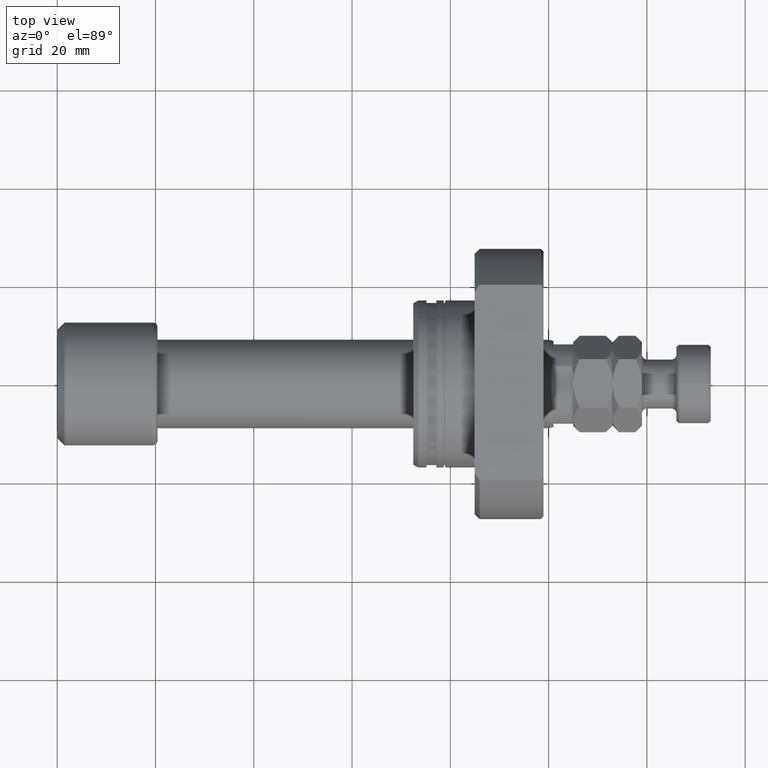
[diagram: clean part render]
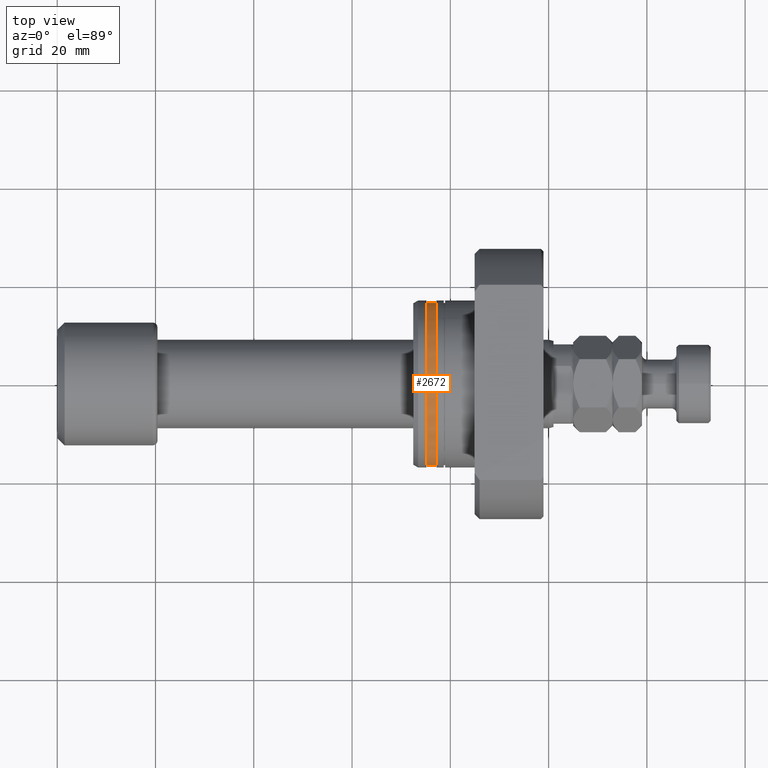
[diagram: same view with one face highlighted and labeled with its STEP entity id]
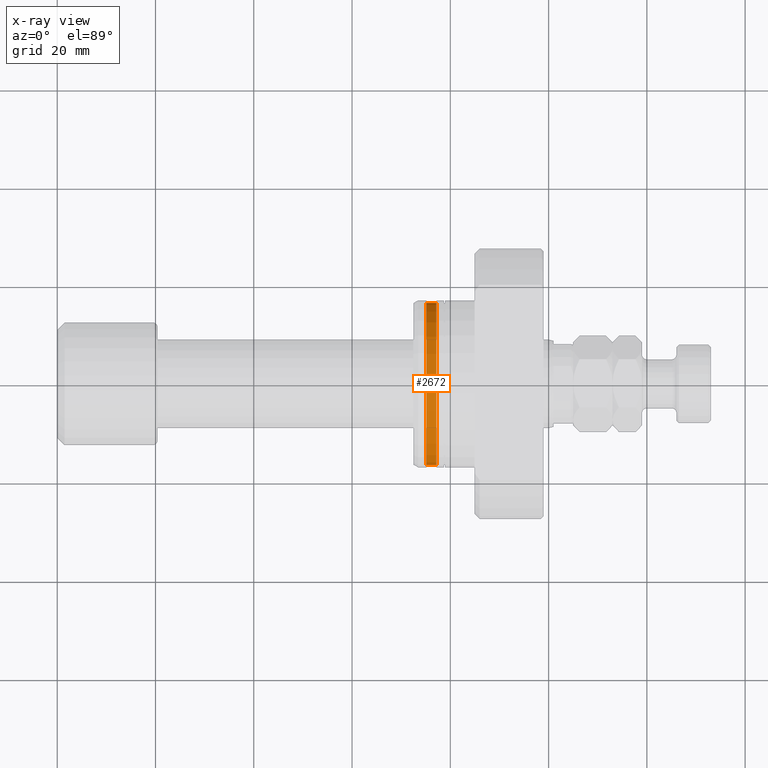
[diagram: x-ray of the same camera — body ghosted, the highlighted face saturated]
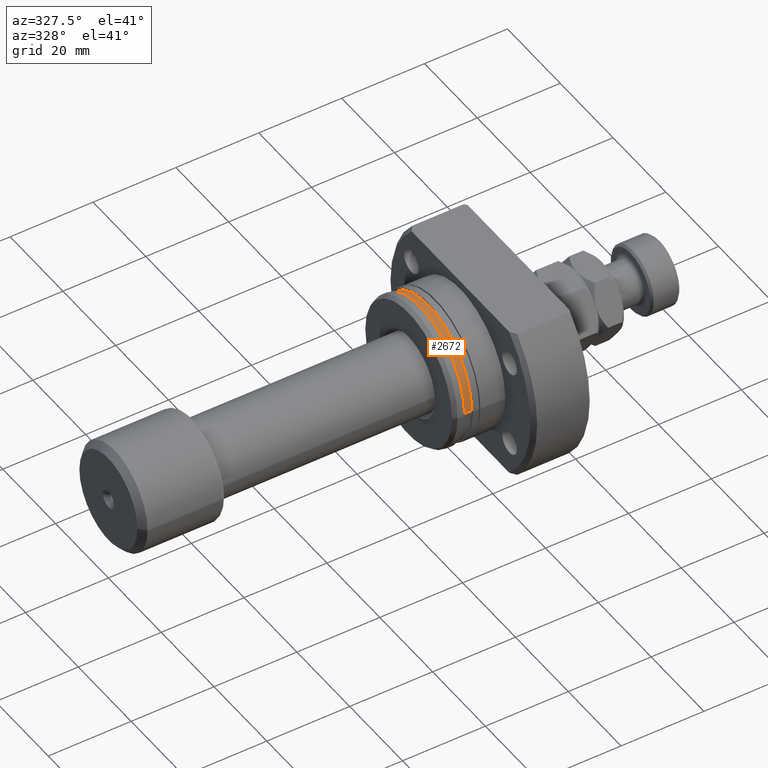
[diagram: same view with one face highlighted and labeled with its STEP entity id]
A machine part, top view. The second image highlights one B-rep face of the part: STEP entity #2672.
The next image is the same camera in x-ray: the body ghosted, the highlighted face saturated — about 0% of this face is hidden behind the body in this view.
A second angle (auxiliary view) of the same face is appended — the face is thin or edge-on in the first view.
In plain terms, the highlighted cylindrical surface (partial cylindrical patch) has radius 16.5 mm, axis along (1, 0, 0).
Its self-contained STEP definition (entity closure, byte-faithful):
#55 = DIRECTION ( 'NONE',  ( 1.000000000000000000, 9.242617352055502386E-18, -0.000000000000000000 ) ) ;
#104 = EDGE_CURVE ( 'NONE', #979, #1402, #803, .T. ) ;
#165 = EDGE_LOOP ( 'NONE', ( #4003, #2597, #606, #430 ) ) ;
#251 = DIRECTION ( 'NONE',  ( 1.000000000000000000, 9.242617352055502386E-18, -0.000000000000000000 ) ) ;
#348 = EDGE_CURVE ( 'NONE', #979, #511, #1581, .T. ) ;
#429 = DIRECTION ( 'NONE',  ( 0.000000000000000000, 1.000000000000000000, 0.000000000000000000 ) ) ;
#430 = ORIENTED_EDGE ( 'NONE', *, *, #348, .F. ) ;
#511 = VERTEX_POINT ( 'NONE', #870 ) ;
#568 = VECTOR ( 'NONE', #55, 1000.000000000000000 ) ;
#606 = ORIENTED_EDGE ( 'NONE', *, *, #1472, .F. ) ;
#695 = DIRECTION ( 'NONE',  ( 0.000000000000000000, 1.000000000000000000, 0.000000000000000000 ) ) ;
#803 = CIRCLE ( 'NONE', #1203, 16.49999999999999289 ) ;
#870 = CARTESIAN_POINT ( 'NONE',  ( 4.699999999998548894, 16.49999999999999645, 0.000000000000000000 ) ) ;
#979 = VERTEX_POINT ( 'NONE', #2469 ) ;
#1203 = AXIS2_PLACEMENT_3D ( 'NONE', #2564, #251, #695 ) ;
#1244 = CARTESIAN_POINT ( 'NONE',  ( 4.699999999998548894, 4.344030155464744241E-17, 0.000000000000000000 ) ) ;
#1402 = VERTEX_POINT ( 'NONE', #4755 ) ;
#1472 = EDGE_CURVE ( 'NONE', #511, #3214, #2228, .T. ) ;
#1581 = LINE ( 'NONE', #3730, #568 ) ;
#1639 = EDGE_CURVE ( 'NONE', #1402, #3214, #4110, .T. ) ;
#1760 = AXIS2_PLACEMENT_3D ( 'NONE', #1244, #2738, #4245 ) ;
#1856 = FACE_OUTER_BOUND ( 'NONE', #165, .T. ) ;
#2125 = CARTESIAN_POINT ( 'NONE',  ( 4.699999999998548894, -16.49999999999999645, 2.020667218593132706E-15 ) ) ;
#2228 = CIRCLE ( 'NONE', #1760, 16.49999999999999645 ) ;
#2469 = CARTESIAN_POINT ( 'NONE',  ( 2.699999999999782574, 16.49999999999999289, 0.000000000000000000 ) ) ;
#2564 = CARTESIAN_POINT ( 'NONE',  ( 2.699999999999782574, 2.495506685054785763E-17, 0.000000000000000000 ) ) ;
#2597 = ORIENTED_EDGE ( 'NONE', *, *, #1639, .T. ) ;
#2672 = ADVANCED_FACE ( 'NONE', ( #1856 ), #3006, .T. ) ;
#2710 = AXIS2_PLACEMENT_3D ( 'NONE', #3356, #4862, #429 ) ;
#2738 = DIRECTION ( 'NONE',  ( 1.000000000000000000, 9.242617352055502386E-18, -0.000000000000000000 ) ) ;
#3006 = CYLINDRICAL_SURFACE ( 'NONE', #2710, 16.49999999999999289 ) ;
#3214 = VERTEX_POINT ( 'NONE', #2125 ) ;
#3328 = VECTOR ( 'NONE', #3339, 1000.000000000000000 ) ;
#3339 = DIRECTION ( 'NONE',  ( 1.000000000000000000, 9.242617352055502386E-18, -0.000000000000000000 ) ) ;
#3356 = CARTESIAN_POINT ( 'NONE',  ( 26.50000000000000711, 2.449293598294708880E-16, 0.000000000000000000 ) ) ;
#3730 = CARTESIAN_POINT ( 'NONE',  ( 26.50000000000000711, 16.49999999999999289, 0.000000000000000000 ) ) ;
#4003 = ORIENTED_EDGE ( 'NONE', *, *, #104, .T. ) ;
#4090 = CARTESIAN_POINT ( 'NONE',  ( 26.50000000000000711, -16.49999999999999289, 2.020667218593132311E-15 ) ) ;
#4110 = LINE ( 'NONE', #4090, #3328 ) ;
#4245 = DIRECTION ( 'NONE',  ( 0.000000000000000000, 1.000000000000000000, 0.000000000000000000 ) ) ;
#4755 = CARTESIAN_POINT ( 'NONE',  ( 2.699999999999782574, -16.49999999999999289, 2.020667218593132311E-15 ) ) ;
#4862 = DIRECTION ( 'NONE',  ( 1.000000000000000000, 9.242617352055502386E-18, -0.000000000000000000 ) ) ;